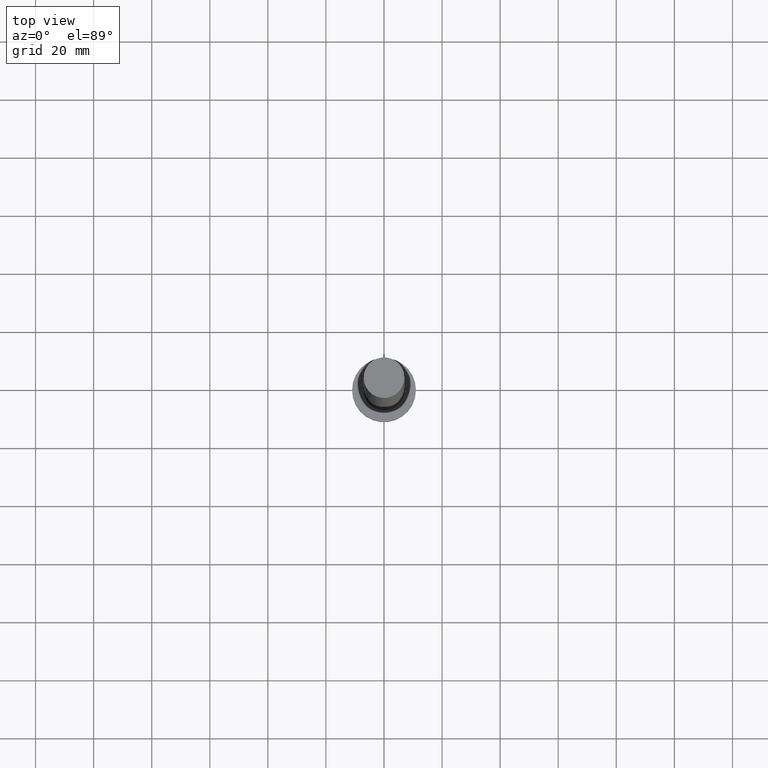
[diagram: clean part render]
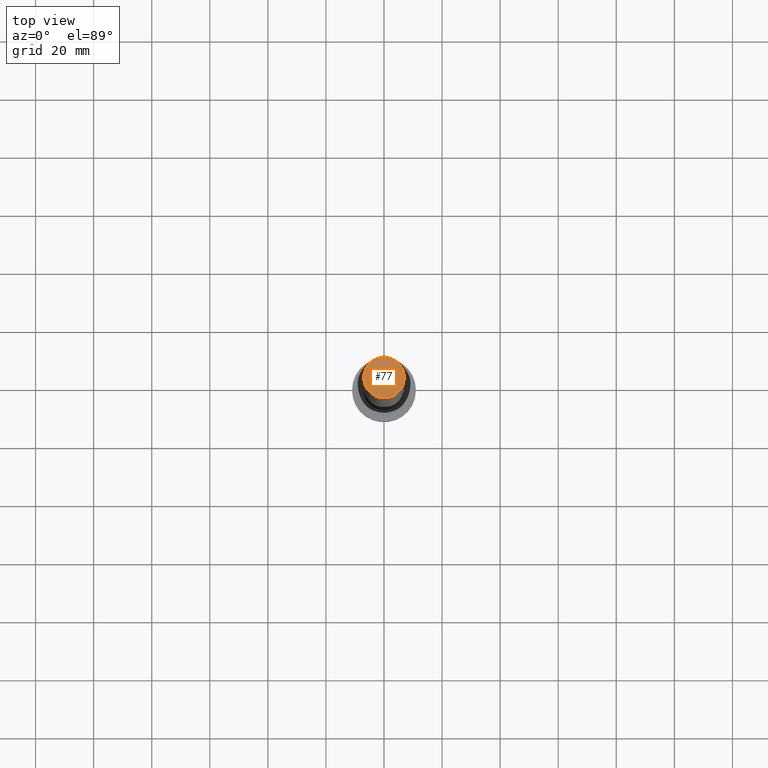
[diagram: same view with one face highlighted and labeled with its STEP entity id]
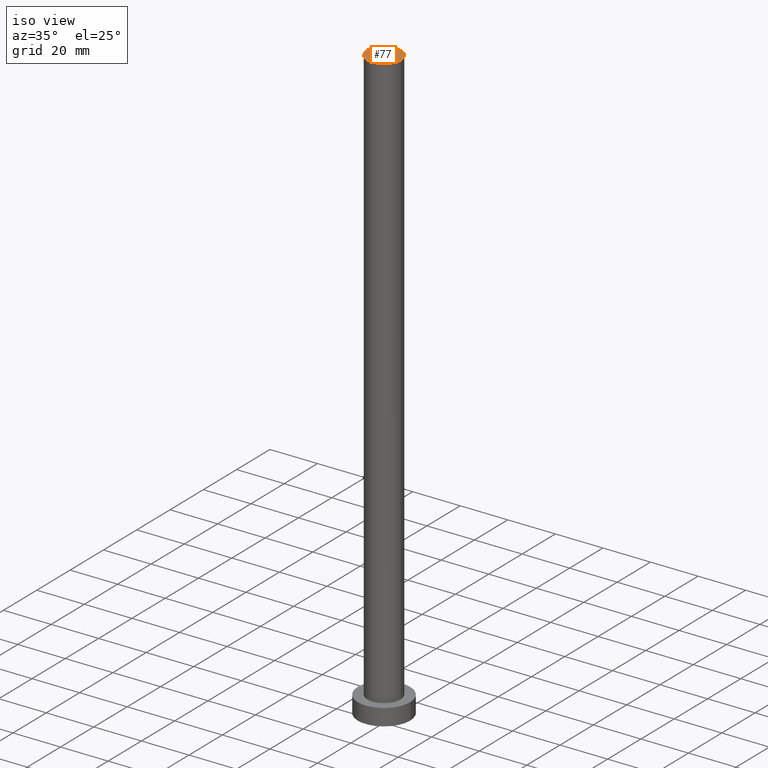
[diagram: same view with one face highlighted and labeled with its STEP entity id]
A machine part, top view. The second image highlights one B-rep face of the part: STEP entity #77.
A second angle (iso view) of the same face is appended — the face is thin or edge-on in the first view.
In plain terms, the highlighted planar face has unit normal (0, 0, 1).
Its self-contained STEP definition (entity closure, byte-faithful):
#4 = AXIS2_PLACEMENT_3D ( 'NONE', #34, #115, #185 ) ;
#9 = EDGE_CURVE ( 'NONE', #216, #246, #175, .T. ) ;
#21 = CARTESIAN_POINT ( 'NONE',  ( 0.000000000000000000, 0.000000000000000000, 250.0000000000000000 ) ) ;
#30 = ORIENTED_EDGE ( 'NONE', *, *, #128, .T. ) ;
#34 = CARTESIAN_POINT ( 'NONE',  ( 0.000000000000000000, 0.000000000000000000, 250.0000000000000000 ) ) ;
#61 = DIRECTION ( 'NONE',  ( 0.000000000000000000, 0.000000000000000000, 1.000000000000000000 ) ) ;
#77 = ADVANCED_FACE ( 'NONE', ( #108 ), #89, .T. ) ;
#89 = PLANE ( 'NONE',  #135 ) ;
#100 = DIRECTION ( 'NONE',  ( 1.000000000000000000, 0.000000000000000000, -0.000000000000000000 ) ) ;
#106 = ORIENTED_EDGE ( 'NONE', *, *, #9, .T. ) ;
#108 = FACE_OUTER_BOUND ( 'NONE', #238, .T. ) ;
#115 = DIRECTION ( 'NONE',  ( 0.000000000000000000, 0.000000000000000000, 1.000000000000000000 ) ) ;
#119 = CIRCLE ( 'NONE', #4, 7.000000000000000000 ) ;
#128 = EDGE_CURVE ( 'NONE', #246, #216, #119, .T. ) ;
#135 = AXIS2_PLACEMENT_3D ( 'NONE', #245, #239, #100 ) ;
#141 = DIRECTION ( 'NONE',  ( 1.000000000000000000, 0.000000000000000000, 0.000000000000000000 ) ) ;
#173 = CARTESIAN_POINT ( 'NONE',  ( -7.000000000000000000, 0.000000000000000000, 250.0000000000000000 ) ) ;
#174 = CARTESIAN_POINT ( 'NONE',  ( 7.000000000000000000, 8.572527594031473190E-16, 250.0000000000000000 ) ) ;
#175 = CIRCLE ( 'NONE', #247, 7.000000000000000000 ) ;
#185 = DIRECTION ( 'NONE',  ( 1.000000000000000000, 0.000000000000000000, 0.000000000000000000 ) ) ;
#216 = VERTEX_POINT ( 'NONE', #173 ) ;
#238 = EDGE_LOOP ( 'NONE', ( #106, #30 ) ) ;
#239 = DIRECTION ( 'NONE',  ( 0.000000000000000000, 0.000000000000000000, 1.000000000000000000 ) ) ;
#245 = CARTESIAN_POINT ( 'NONE',  ( 0.000000000000000000, 0.000000000000000000, 250.0000000000000000 ) ) ;
#246 = VERTEX_POINT ( 'NONE', #174 ) ;
#247 = AXIS2_PLACEMENT_3D ( 'NONE', #21, #61, #141 ) ;